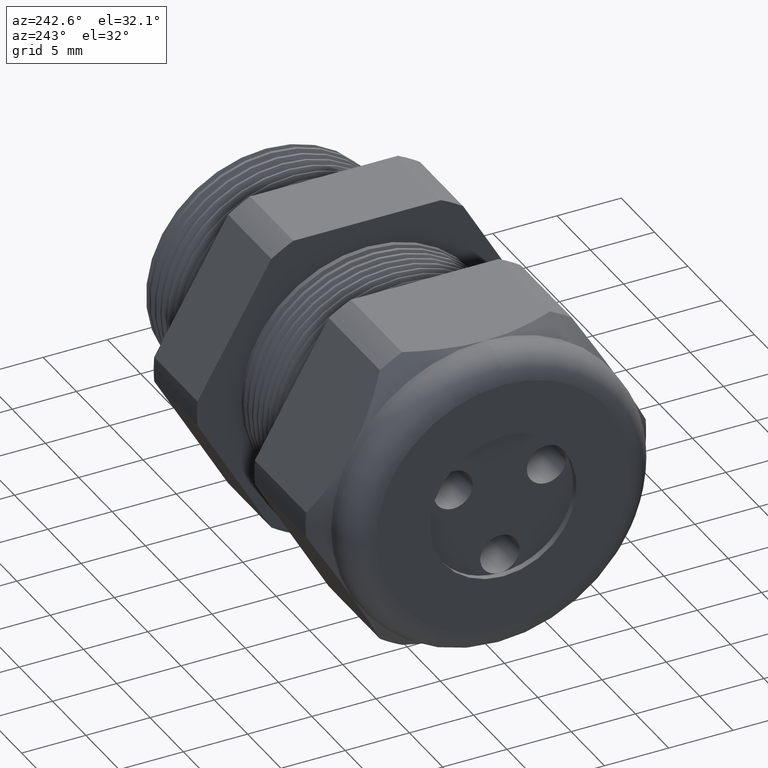
[diagram: clean part render]
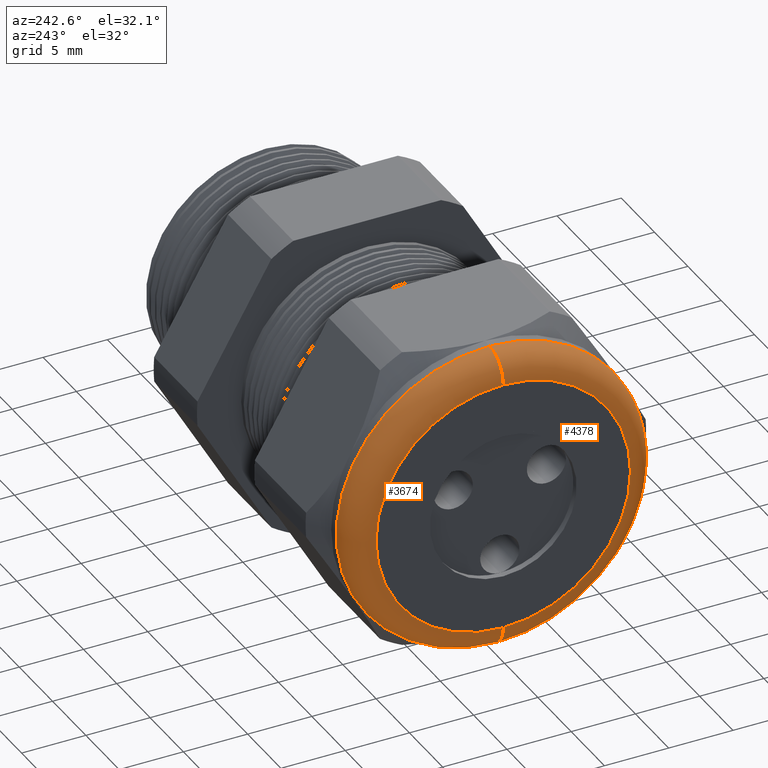
[diagram: same view with one multi-face feature highlighted, each face labeled with its STEP entity id]
A machine part, auxiliary view. The highlighted faces form ONE feature: a constant-radius fillet chain: 2 tangent blend faces with common blend radius 2.032 mm. The faces share edges in the B-rep.
Their STEP definitions:
[1] entity #4378 (Torus):
#1007 = CARTESIAN_POINT ( 'NONE',  ( -1.370000000000000100, 0.0000000000000000000, 0.3899999999999999600 ) ) ;
#1059 = DIRECTION ( 'NONE',  ( 0.0000000000000000000, 0.0000000000000000000, -1.000000000000000000 ) ) ;
#1060 = DIRECTION ( 'NONE',  ( 0.0000000000000000000, -1.000000000000000000, 0.0000000000000000000 ) ) ;
#1061 = CARTESIAN_POINT ( 'NONE',  ( -1.290000000000000300, 0.0000000000000000000, 0.3899999999999999600 ) ) ;
#1062 = AXIS2_PLACEMENT_3D ( 'NONE', #1061, #1060, #1059 ) ;
#1063 = CIRCLE ( 'NONE', #1062, 0.07999999999999996000 ) ;
#1076 = CARTESIAN_POINT ( 'NONE',  ( -1.370000000000000100, 5.265981236333617600E-017, -0.3899999999999999600 ) ) ;
#1077 = DIRECTION ( 'NONE',  ( 0.0000000000000000000, -1.224646799147353900E-016, 1.000000000000000000 ) ) ;
#1078 = DIRECTION ( 'NONE',  ( 0.0000000000000000000, 1.000000000000000000, 1.224646799147353200E-016 ) ) ;
#1079 = CARTESIAN_POINT ( 'NONE',  ( -1.290000000000000300, 4.776122516674676800E-017, -0.3899999999999999600 ) ) ;
#1080 = AXIS2_PLACEMENT_3D ( 'NONE', #1079, #1078, #1077 ) ;
#1081 = CIRCLE ( 'NONE', #1080, 0.07999999999999996000 ) ;
#1082 = CARTESIAN_POINT ( 'NONE',  ( -1.290000000000000300, 5.755839955992558400E-017, 0.4699999999999999200 ) ) ;
#1083 = CARTESIAN_POINT ( 'NONE',  ( -1.290000000000000300, 0.0000000000000000000, -0.4699999999999999200 ) ) ;
#2076 = DIRECTION ( 'NONE',  ( 0.0000000000000000000, 0.0000000000000000000, 1.000000000000000000 ) ) ;
#2077 = DIRECTION ( 'NONE',  ( 1.000000000000000000, 0.0000000000000000000, 0.0000000000000000000 ) ) ;
#2078 = AXIS2_PLACEMENT_3D ( 'NONE', #2084, #2077, #2076 ) ;
#2079 = CIRCLE ( 'NONE', #2078, 0.4699999999999999200 ) ;
#2084 = CARTESIAN_POINT ( 'NONE',  ( -1.290000000000000300, 0.0000000000000000000, 0.0000000000000000000 ) ) ;
#2153 = CARTESIAN_POINT ( 'NONE',  ( -1.370000000000000100, 0.0000000000000000000, 0.0000000000000000000 ) ) ;
#2154 = AXIS2_PLACEMENT_3D ( 'NONE', #2153, #2214, #2213 ) ;
#2155 = CIRCLE ( 'NONE', #2154, 0.3899999999999999600 ) ;
#2213 = DIRECTION ( 'NONE',  ( 0.0000000000000000000, 0.0000000000000000000, 1.000000000000000000 ) ) ;
#2214 = DIRECTION ( 'NONE',  ( -1.000000000000000000, 0.0000000000000000000, 0.0000000000000000000 ) ) ;
#2387 = DIRECTION ( 'NONE',  ( 0.0000000000000000000, 0.0000000000000000000, 1.000000000000000000 ) ) ;
#2388 = DIRECTION ( 'NONE',  ( -1.000000000000000000, 0.0000000000000000000, 0.0000000000000000000 ) ) ;
#2389 = CARTESIAN_POINT ( 'NONE',  ( -1.290000000000000300, 0.0000000000000000000, 0.0000000000000000000 ) ) ;
#2390 = AXIS2_PLACEMENT_3D ( 'NONE', #2389, #2388, #2387 ) ;
#2391 = TOROIDAL_SURFACE ( 'NONE', #2390, 0.3899999999999999600, 0.08000000000000000200 ) ;
#2392 = FACE_OUTER_BOUND ( 'NONE', #4379, .T. ) ;
#3657 = VERTEX_POINT ( 'NONE', #1007 ) ;
#3659 = EDGE_CURVE ( 'NONE', #3679, #3657, #1063, .T. ) ;
#3678 = VERTEX_POINT ( 'NONE', #1083 ) ;
#3679 = VERTEX_POINT ( 'NONE', #1082 ) ;
#3681 = EDGE_CURVE ( 'NONE', #3678, #3682, #1081, .T. ) ;
#3682 = VERTEX_POINT ( 'NONE', #1076 ) ;
#4166 = EDGE_CURVE ( 'NONE', #3679, #3678, #2079, .T. ) ;
#4233 = EDGE_CURVE ( 'NONE', #3682, #3657, #2155, .T. ) ;
#4378 = ADVANCED_FACE ( 'NONE', ( #2392 ), #2391, .T. ) ;
#4379 = EDGE_LOOP ( 'NONE', ( #4380, #4381, #4382, #4436 ) ) ;
#4380 = ORIENTED_EDGE ( 'NONE', *, *, #3681, .F. ) ;
#4381 = ORIENTED_EDGE ( 'NONE', *, *, #4166, .F. ) ;
#4382 = ORIENTED_EDGE ( 'NONE', *, *, #3659, .T. ) ;
#4436 = ORIENTED_EDGE ( 'NONE', *, *, #4233, .F. ) ;
[2] entity #3674 (Torus):
#1002 = DIRECTION ( 'NONE',  ( 0.0000000000000000000, 0.0000000000000000000, 1.000000000000000000 ) ) ;
#1003 = DIRECTION ( 'NONE',  ( -1.000000000000000000, 0.0000000000000000000, 0.0000000000000000000 ) ) ;
#1004 = CARTESIAN_POINT ( 'NONE',  ( -1.370000000000000100, 0.0000000000000000000, 0.0000000000000000000 ) ) ;
#1005 = AXIS2_PLACEMENT_3D ( 'NONE', #1004, #1003, #1002 ) ;
#1006 = CIRCLE ( 'NONE', #1005, 0.3899999999999999600 ) ;
#1007 = CARTESIAN_POINT ( 'NONE',  ( -1.370000000000000100, 0.0000000000000000000, 0.3899999999999999600 ) ) ;
#1059 = DIRECTION ( 'NONE',  ( 0.0000000000000000000, 0.0000000000000000000, -1.000000000000000000 ) ) ;
#1060 = DIRECTION ( 'NONE',  ( 0.0000000000000000000, -1.000000000000000000, 0.0000000000000000000 ) ) ;
#1061 = CARTESIAN_POINT ( 'NONE',  ( -1.290000000000000300, 0.0000000000000000000, 0.3899999999999999600 ) ) ;
#1062 = AXIS2_PLACEMENT_3D ( 'NONE', #1061, #1060, #1059 ) ;
#1063 = CIRCLE ( 'NONE', #1062, 0.07999999999999996000 ) ;
#1076 = CARTESIAN_POINT ( 'NONE',  ( -1.370000000000000100, 5.265981236333617600E-017, -0.3899999999999999600 ) ) ;
#1077 = DIRECTION ( 'NONE',  ( 0.0000000000000000000, -1.224646799147353900E-016, 1.000000000000000000 ) ) ;
#1078 = DIRECTION ( 'NONE',  ( 0.0000000000000000000, 1.000000000000000000, 1.224646799147353200E-016 ) ) ;
#1079 = CARTESIAN_POINT ( 'NONE',  ( -1.290000000000000300, 4.776122516674676800E-017, -0.3899999999999999600 ) ) ;
#1080 = AXIS2_PLACEMENT_3D ( 'NONE', #1079, #1078, #1077 ) ;
#1081 = CIRCLE ( 'NONE', #1080, 0.07999999999999996000 ) ;
#1082 = CARTESIAN_POINT ( 'NONE',  ( -1.290000000000000300, 5.755839955992558400E-017, 0.4699999999999999200 ) ) ;
#1083 = CARTESIAN_POINT ( 'NONE',  ( -1.290000000000000300, 0.0000000000000000000, -0.4699999999999999200 ) ) ;
#1084 = DIRECTION ( 'NONE',  ( 0.0000000000000000000, 0.0000000000000000000, 1.000000000000000000 ) ) ;
#1085 = DIRECTION ( 'NONE',  ( 1.000000000000000000, 0.0000000000000000000, 0.0000000000000000000 ) ) ;
#1086 = CARTESIAN_POINT ( 'NONE',  ( -1.290000000000000300, 0.0000000000000000000, 0.0000000000000000000 ) ) ;
#1087 = AXIS2_PLACEMENT_3D ( 'NONE', #1086, #1085, #1084 ) ;
#1088 = CIRCLE ( 'NONE', #1087, 0.4699999999999999200 ) ;
#1089 = DIRECTION ( 'NONE',  ( 0.0000000000000000000, 0.0000000000000000000, 1.000000000000000000 ) ) ;
#1090 = DIRECTION ( 'NONE',  ( -1.000000000000000000, 0.0000000000000000000, 0.0000000000000000000 ) ) ;
#1091 = CARTESIAN_POINT ( 'NONE',  ( -1.290000000000000300, 0.0000000000000000000, 0.0000000000000000000 ) ) ;
#1092 = AXIS2_PLACEMENT_3D ( 'NONE', #1091, #1090, #1089 ) ;
#1093 = TOROIDAL_SURFACE ( 'NONE', #1092, 0.3899999999999999600, 0.08000000000000000200 ) ;
#1094 = FACE_OUTER_BOUND ( 'NONE', #3675, .T. ) ;
#3655 = ORIENTED_EDGE ( 'NONE', *, *, #3656, .F. ) ;
#3656 = EDGE_CURVE ( 'NONE', #3657, #3682, #1006, .T. ) ;
#3657 = VERTEX_POINT ( 'NONE', #1007 ) ;
#3658 = ORIENTED_EDGE ( 'NONE', *, *, #3659, .F. ) ;
#3659 = EDGE_CURVE ( 'NONE', #3679, #3657, #1063, .T. ) ;
#3674 = ADVANCED_FACE ( 'NONE', ( #1094 ), #1093, .T. ) ;
#3675 = EDGE_LOOP ( 'NONE', ( #3676, #3680, #3655, #3658 ) ) ;
#3676 = ORIENTED_EDGE ( 'NONE', *, *, #3677, .F. ) ;
#3677 = EDGE_CURVE ( 'NONE', #3678, #3679, #1088, .T. ) ;
#3678 = VERTEX_POINT ( 'NONE', #1083 ) ;
#3679 = VERTEX_POINT ( 'NONE', #1082 ) ;
#3680 = ORIENTED_EDGE ( 'NONE', *, *, #3681, .T. ) ;
#3681 = EDGE_CURVE ( 'NONE', #3678, #3682, #1081, .T. ) ;
#3682 = VERTEX_POINT ( 'NONE', #1076 ) ;